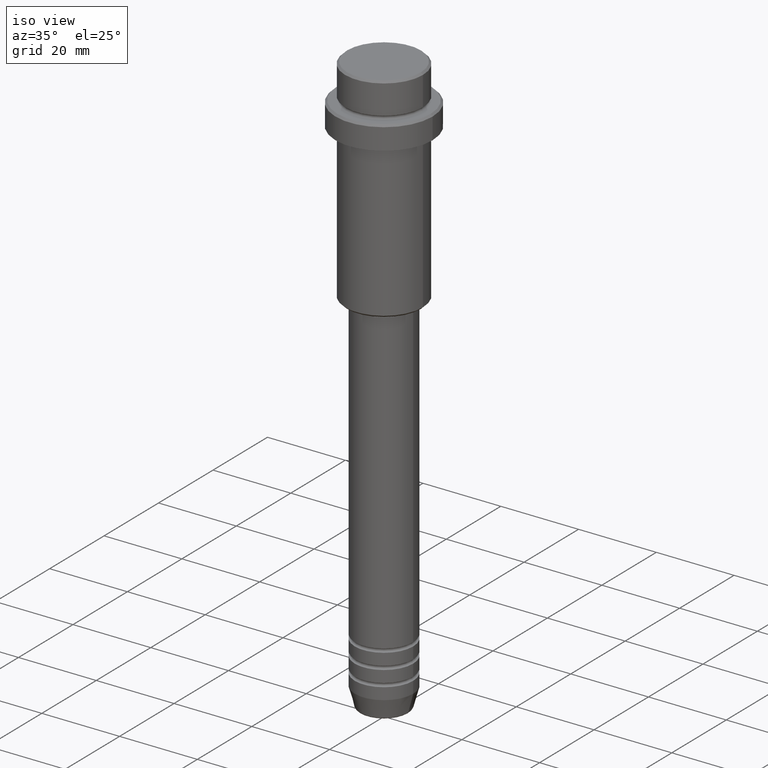
[diagram: clean part render]
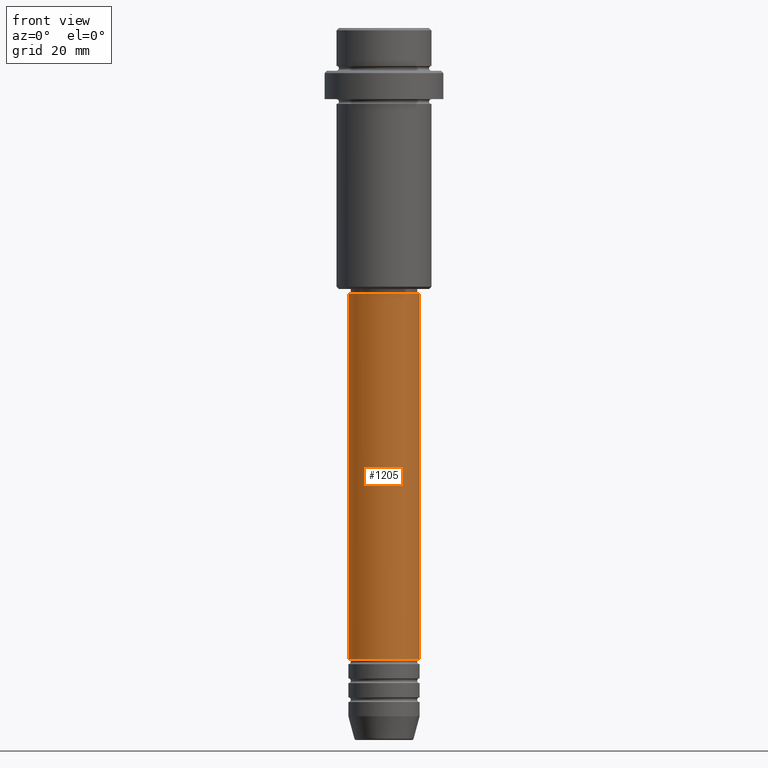
[diagram: tour spotlight — one face highlighted and labeled with its STEP entity id]
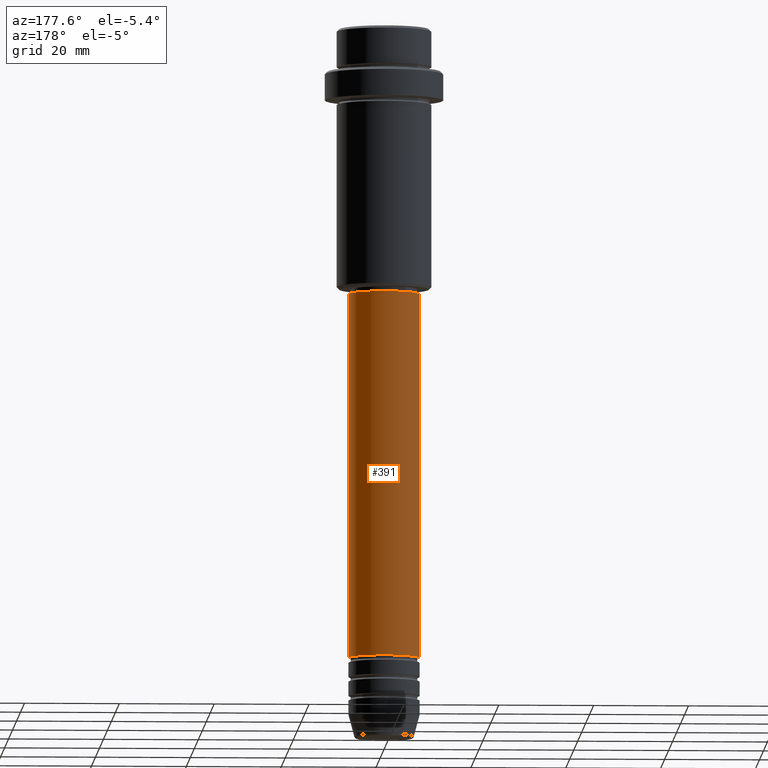
[diagram: tour spotlight — one face highlighted and labeled with its STEP entity id]
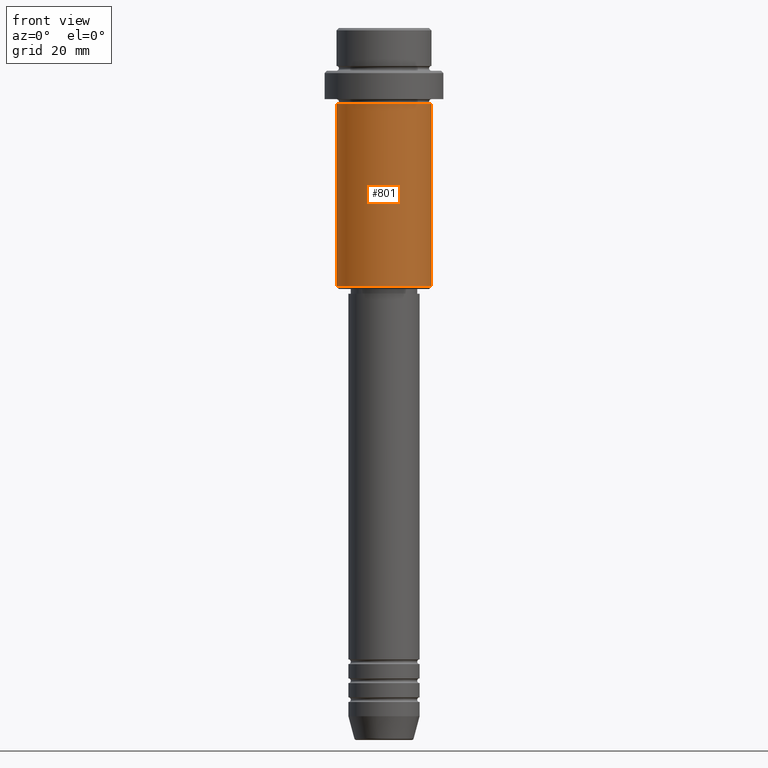
[diagram: tour spotlight — one face highlighted and labeled with its STEP entity id]
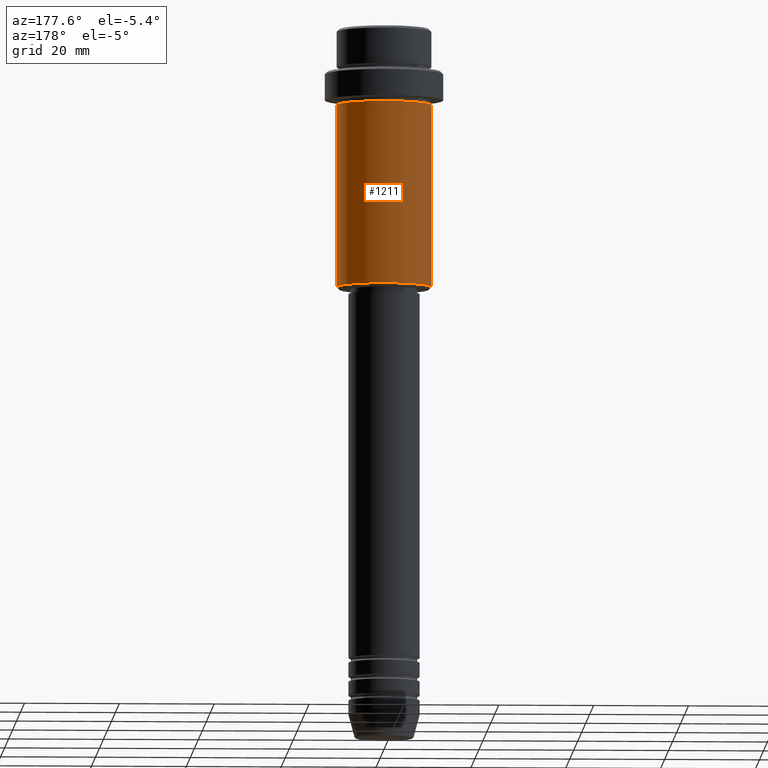
[diagram: tour spotlight — one face highlighted and labeled with its STEP entity id]
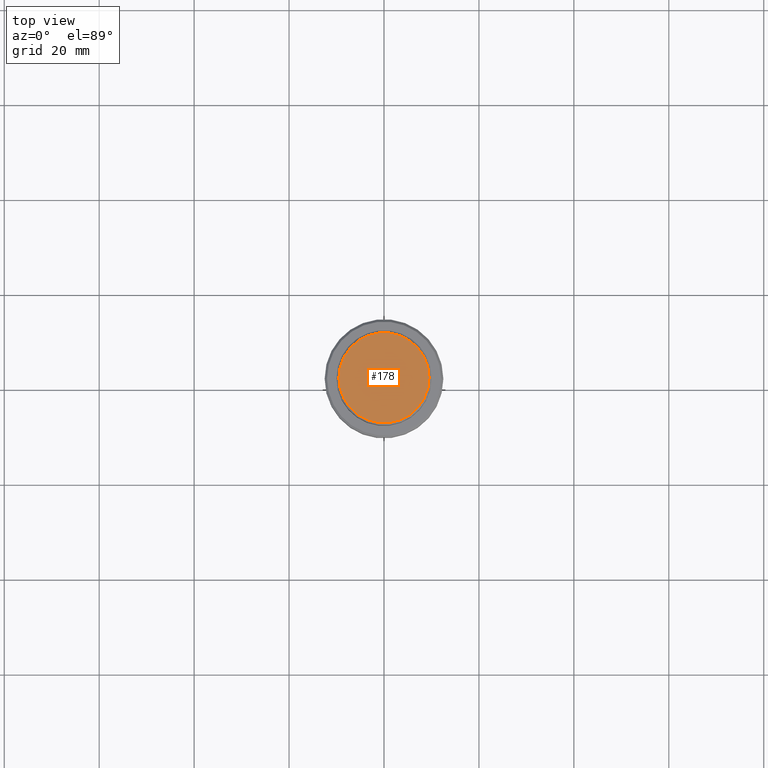
[diagram: tour spotlight — one face highlighted and labeled with its STEP entity id]
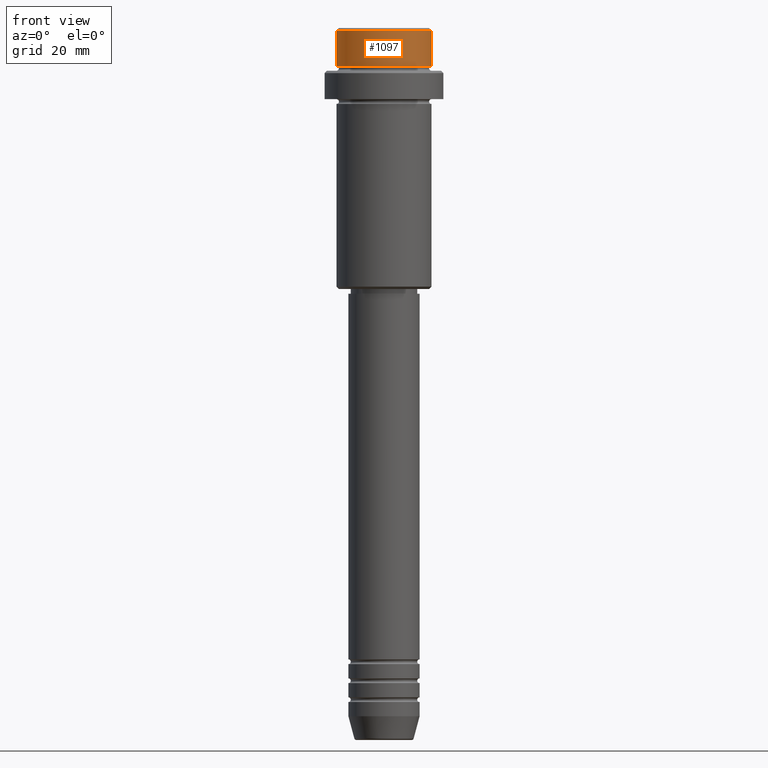
[diagram: tour spotlight — one face highlighted and labeled with its STEP entity id]
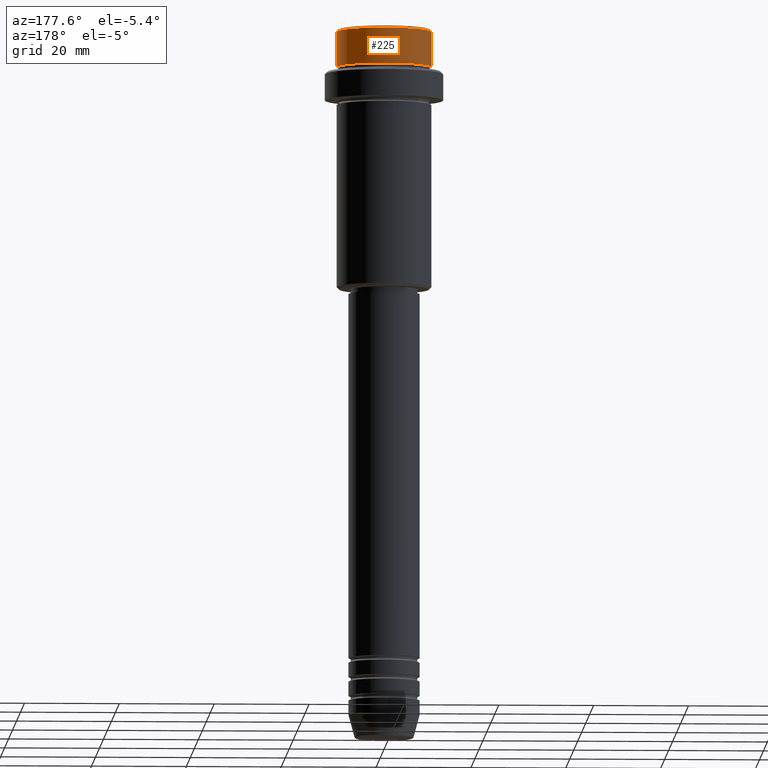
[diagram: tour spotlight — one face highlighted and labeled with its STEP entity id]
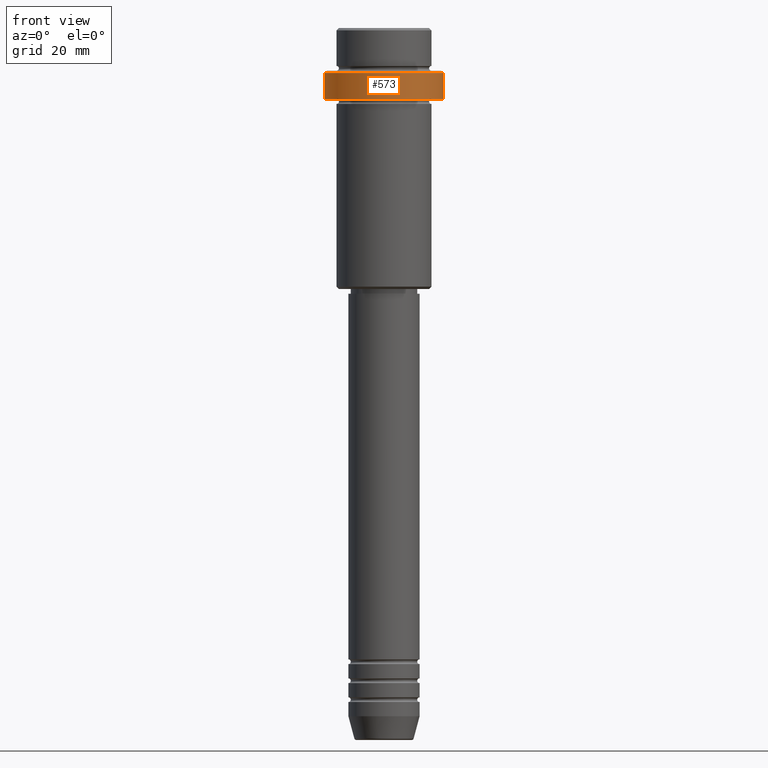
[diagram: tour spotlight — one face highlighted and labeled with its STEP entity id]
A machine part: a face-by-face anatomy tour. The part has 52 B-rep faces; the first image is the clean iso view, then the 8 largest visible faces are spotlighted one at a time (largest first), each with its STEP entity span.

Face 1 — front view, entity #1205. In plain terms, the highlighted cylindrical surface (edge-blend (fillet) strip) has radius 7.5 mm, axis along (-0, -0, 1).
Definition (entity closure, byte-faithful):
#8 = CYLINDRICAL_SURFACE ( 'NONE', #286, 7.500000000000000000 ) ;
#26 = CARTESIAN_POINT ( 'NONE',  ( -7.500000000000000000, 9.184850993605147944E-16, 0.000000000000000000 ) ) ;
#38 = VERTEX_POINT ( 'NONE', #171 ) ;
#110 = ORIENTED_EDGE ( 'NONE', *, *, #1220, .T. ) ;
#119 = VERTEX_POINT ( 'NONE', #409 ) ;
#123 = DIRECTION ( 'NONE',  ( -0.000000000000000000, -0.000000000000000000, 1.000000000000000000 ) ) ;
#171 = CARTESIAN_POINT ( 'NONE',  ( -7.500000000000000000, 9.184850993605147944E-16, -55.99999999999997158 ) ) ;
#200 = CIRCLE ( 'NONE', #999, 7.500000000000000000 ) ;
#240 = VECTOR ( 'NONE', #123, 1000.000000000000000 ) ;
#251 = CARTESIAN_POINT ( 'NONE',  ( 0.000000000000000000, 0.000000000000000000, -55.99999999999997158 ) ) ;
#256 = DIRECTION ( 'NONE',  ( 1.000000000000000000, 0.000000000000000000, 0.000000000000000000 ) ) ;
#268 = VECTOR ( 'NONE', #652, 1000.000000000000000 ) ;
#286 = AXIS2_PLACEMENT_3D ( 'NONE', #902, #793, #670 ) ;
#325 = EDGE_CURVE ( 'NONE', #751, #38, #1217, .T. ) ;
#409 = CARTESIAN_POINT ( 'NONE',  ( 7.500000000000000000, 0.000000000000000000, -132.9999999999998579 ) ) ;
#478 = CARTESIAN_POINT ( 'NONE',  ( 0.000000000000000000, 0.000000000000000000, -132.9999999999998579 ) ) ;
#519 = ORIENTED_EDGE ( 'NONE', *, *, #1277, .F. ) ;
#533 = AXIS2_PLACEMENT_3D ( 'NONE', #478, #921, #1356 ) ;
#629 = CIRCLE ( 'NONE', #533, 7.500000000000000000 ) ;
#652 = DIRECTION ( 'NONE',  ( -0.000000000000000000, -0.000000000000000000, 1.000000000000000000 ) ) ;
#670 = DIRECTION ( 'NONE',  ( 1.000000000000000000, 0.000000000000000000, 0.000000000000000000 ) ) ;
#682 = EDGE_LOOP ( 'NONE', ( #1349, #915, #110, #519 ) ) ;
#751 = VERTEX_POINT ( 'NONE', #1339 ) ;
#763 = FACE_OUTER_BOUND ( 'NONE', #682, .T. ) ;
#776 = LINE ( 'NONE', #1231, #268 ) ;
#793 = DIRECTION ( 'NONE',  ( -0.000000000000000000, -0.000000000000000000, 1.000000000000000000 ) ) ;
#799 = CARTESIAN_POINT ( 'NONE',  ( 7.500000000000000000, 0.000000000000000000, -55.99999999999997158 ) ) ;
#902 = CARTESIAN_POINT ( 'NONE',  ( 0.000000000000000000, 0.000000000000000000, 0.000000000000000000 ) ) ;
#915 = ORIENTED_EDGE ( 'NONE', *, *, #1398, .T. ) ;
#921 = DIRECTION ( 'NONE',  ( -0.000000000000000000, -0.000000000000000000, 1.000000000000000000 ) ) ;
#999 = AXIS2_PLACEMENT_3D ( 'NONE', #251, #1247, #256 ) ;
#1205 = ADVANCED_FACE ( 'NONE', ( #763 ), #8, .T. ) ;
#1217 = LINE ( 'NONE', #26, #240 ) ;
#1220 = EDGE_CURVE ( 'NONE', #119, #1242, #776, .T. ) ;
#1231 = CARTESIAN_POINT ( 'NONE',  ( 7.500000000000000000, 0.000000000000000000, 0.000000000000000000 ) ) ;
#1242 = VERTEX_POINT ( 'NONE', #799 ) ;
#1247 = DIRECTION ( 'NONE',  ( -0.000000000000000000, -0.000000000000000000, 1.000000000000000000 ) ) ;
#1277 = EDGE_CURVE ( 'NONE', #38, #1242, #200, .T. ) ;
#1339 = CARTESIAN_POINT ( 'NONE',  ( -7.500000000000000000, 9.184850993605147944E-16, -132.9999999999998579 ) ) ;
#1349 = ORIENTED_EDGE ( 'NONE', *, *, #325, .F. ) ;
#1356 = DIRECTION ( 'NONE',  ( 1.000000000000000000, 0.000000000000000000, 0.000000000000000000 ) ) ;
#1398 = EDGE_CURVE ( 'NONE', #751, #119, #629, .T. ) ;

Face 2 — auxiliary view, entity #391. In plain terms, the highlighted cylindrical surface (edge-blend (fillet) strip) has radius 7.5 mm, axis along (-0, -0, 1).
Definition (entity closure, byte-faithful):
#26 = CARTESIAN_POINT ( 'NONE',  ( -7.500000000000000000, 9.184850993605147944E-16, 0.000000000000000000 ) ) ;
#33 = AXIS2_PLACEMENT_3D ( 'NONE', #1037, #279, #1046 ) ;
#38 = VERTEX_POINT ( 'NONE', #171 ) ;
#53 = DIRECTION ( 'NONE',  ( 1.000000000000000000, 0.000000000000000000, 0.000000000000000000 ) ) ;
#119 = VERTEX_POINT ( 'NONE', #409 ) ;
#123 = DIRECTION ( 'NONE',  ( -0.000000000000000000, -0.000000000000000000, 1.000000000000000000 ) ) ;
#171 = CARTESIAN_POINT ( 'NONE',  ( -7.500000000000000000, 9.184850993605147944E-16, -55.99999999999997158 ) ) ;
#175 = AXIS2_PLACEMENT_3D ( 'NONE', #1271, #287, #53 ) ;
#177 = CIRCLE ( 'NONE', #975, 7.500000000000000000 ) ;
#240 = VECTOR ( 'NONE', #123, 1000.000000000000000 ) ;
#268 = VECTOR ( 'NONE', #652, 1000.000000000000000 ) ;
#279 = DIRECTION ( 'NONE',  ( -0.000000000000000000, -0.000000000000000000, 1.000000000000000000 ) ) ;
#287 = DIRECTION ( 'NONE',  ( -0.000000000000000000, -0.000000000000000000, 1.000000000000000000 ) ) ;
#319 = DIRECTION ( 'NONE',  ( -0.000000000000000000, -0.000000000000000000, 1.000000000000000000 ) ) ;
#325 = EDGE_CURVE ( 'NONE', #751, #38, #1217, .T. ) ;
#391 = ADVANCED_FACE ( 'NONE', ( #914 ), #611, .T. ) ;
#409 = CARTESIAN_POINT ( 'NONE',  ( 7.500000000000000000, 0.000000000000000000, -132.9999999999998579 ) ) ;
#447 = EDGE_CURVE ( 'NONE', #1242, #38, #1250, .T. ) ;
#611 = CYLINDRICAL_SURFACE ( 'NONE', #33, 7.500000000000000000 ) ;
#639 = DIRECTION ( 'NONE',  ( 1.000000000000000000, 0.000000000000000000, 0.000000000000000000 ) ) ;
#652 = DIRECTION ( 'NONE',  ( -0.000000000000000000, -0.000000000000000000, 1.000000000000000000 ) ) ;
#751 = VERTEX_POINT ( 'NONE', #1339 ) ;
#776 = LINE ( 'NONE', #1231, #268 ) ;
#799 = CARTESIAN_POINT ( 'NONE',  ( 7.500000000000000000, 0.000000000000000000, -55.99999999999997158 ) ) ;
#913 = ORIENTED_EDGE ( 'NONE', *, *, #1054, .T. ) ;
#914 = FACE_OUTER_BOUND ( 'NONE', #1235, .T. ) ;
#975 = AXIS2_PLACEMENT_3D ( 'NONE', #1380, #319, #639 ) ;
#1021 = ORIENTED_EDGE ( 'NONE', *, *, #325, .T. ) ;
#1037 = CARTESIAN_POINT ( 'NONE',  ( 0.000000000000000000, 0.000000000000000000, 0.000000000000000000 ) ) ;
#1046 = DIRECTION ( 'NONE',  ( 1.000000000000000000, 0.000000000000000000, 0.000000000000000000 ) ) ;
#1054 = EDGE_CURVE ( 'NONE', #119, #751, #177, .T. ) ;
#1209 = ORIENTED_EDGE ( 'NONE', *, *, #1220, .F. ) ;
#1216 = ORIENTED_EDGE ( 'NONE', *, *, #447, .F. ) ;
#1217 = LINE ( 'NONE', #26, #240 ) ;
#1220 = EDGE_CURVE ( 'NONE', #119, #1242, #776, .T. ) ;
#1231 = CARTESIAN_POINT ( 'NONE',  ( 7.500000000000000000, 0.000000000000000000, 0.000000000000000000 ) ) ;
#1235 = EDGE_LOOP ( 'NONE', ( #913, #1021, #1216, #1209 ) ) ;
#1242 = VERTEX_POINT ( 'NONE', #799 ) ;
#1250 = CIRCLE ( 'NONE', #175, 7.500000000000000000 ) ;
#1271 = CARTESIAN_POINT ( 'NONE',  ( 0.000000000000000000, 0.000000000000000000, -55.99999999999997158 ) ) ;
#1339 = CARTESIAN_POINT ( 'NONE',  ( -7.500000000000000000, 9.184850993605147944E-16, -132.9999999999998579 ) ) ;
#1380 = CARTESIAN_POINT ( 'NONE',  ( 0.000000000000000000, 0.000000000000000000, -132.9999999999998579 ) ) ;

Face 3 — front view, entity #801. In plain terms, the highlighted cylindrical surface (partial cylindrical patch) has radius 10 mm, axis along (-0, -0, 1).
Definition (entity closure, byte-faithful):
#27 = EDGE_CURVE ( 'NONE', #1068, #574, #933, .T. ) ;
#46 = LINE ( 'NONE', #919, #486 ) ;
#85 = EDGE_LOOP ( 'NONE', ( #797, #1330, #1099, #1246 ) ) ;
#103 = CIRCLE ( 'NONE', #1111, 10.00000000000000000 ) ;
#107 = VERTEX_POINT ( 'NONE', #390 ) ;
#166 = VERTEX_POINT ( 'NONE', #1079 ) ;
#172 = DIRECTION ( 'NONE',  ( -0.000000000000000000, -0.000000000000000000, 1.000000000000000000 ) ) ;
#184 = CARTESIAN_POINT ( 'NONE',  ( 0.000000000000000000, 0.000000000000000000, -54.49999999999997868 ) ) ;
#224 = DIRECTION ( 'NONE',  ( 1.000000000000000000, 0.000000000000000000, 0.000000000000000000 ) ) ;
#253 = DIRECTION ( 'NONE',  ( -0.000000000000000000, -0.000000000000000000, 1.000000000000000000 ) ) ;
#298 = CARTESIAN_POINT ( 'NONE',  ( -10.00000000000000000, 1.224646799147353256E-15, -54.49999999999997868 ) ) ;
#390 = CARTESIAN_POINT ( 'NONE',  ( 10.00000000000000000, 0.000000000000000000, -16.00000000000000000 ) ) ;
#486 = VECTOR ( 'NONE', #1139, 1000.000000000000000 ) ;
#548 = EDGE_CURVE ( 'NONE', #1068, #166, #103, .T. ) ;
#555 = EDGE_CURVE ( 'NONE', #166, #107, #46, .T. ) ;
#574 = VERTEX_POINT ( 'NONE', #978 ) ;
#580 = CIRCLE ( 'NONE', #790, 10.00000000000000000 ) ;
#590 = DIRECTION ( 'NONE',  ( -0.000000000000000000, -0.000000000000000000, 1.000000000000000000 ) ) ;
#725 = DIRECTION ( 'NONE',  ( -0.000000000000000000, -0.000000000000000000, 1.000000000000000000 ) ) ;
#771 = FACE_OUTER_BOUND ( 'NONE', #85, .T. ) ;
#777 = CARTESIAN_POINT ( 'NONE',  ( 0.000000000000000000, 0.000000000000000000, 0.000000000000000000 ) ) ;
#784 = VECTOR ( 'NONE', #725, 1000.000000000000000 ) ;
#790 = AXIS2_PLACEMENT_3D ( 'NONE', #1044, #172, #929 ) ;
#797 = ORIENTED_EDGE ( 'NONE', *, *, #27, .F. ) ;
#801 = ADVANCED_FACE ( 'NONE', ( #771 ), #1308, .T. ) ;
#919 = CARTESIAN_POINT ( 'NONE',  ( 10.00000000000000000, 0.000000000000000000, 0.000000000000000000 ) ) ;
#929 = DIRECTION ( 'NONE',  ( 1.000000000000000000, 0.000000000000000000, 0.000000000000000000 ) ) ;
#933 = LINE ( 'NONE', #1053, #784 ) ;
#978 = CARTESIAN_POINT ( 'NONE',  ( -10.00000000000000000, 1.224646799147353256E-15, -16.00000000000000000 ) ) ;
#1025 = DIRECTION ( 'NONE',  ( -1.000000000000000000, 0.000000000000000000, 0.000000000000000000 ) ) ;
#1044 = CARTESIAN_POINT ( 'NONE',  ( 0.000000000000000000, 0.000000000000000000, -16.00000000000000000 ) ) ;
#1053 = CARTESIAN_POINT ( 'NONE',  ( -10.00000000000000000, 1.224646799147353256E-15, 0.000000000000000000 ) ) ;
#1068 = VERTEX_POINT ( 'NONE', #298 ) ;
#1079 = CARTESIAN_POINT ( 'NONE',  ( 10.00000000000000000, 0.000000000000000000, -54.49999999999997868 ) ) ;
#1099 = ORIENTED_EDGE ( 'NONE', *, *, #555, .T. ) ;
#1111 = AXIS2_PLACEMENT_3D ( 'NONE', #184, #590, #1025 ) ;
#1139 = DIRECTION ( 'NONE',  ( -0.000000000000000000, -0.000000000000000000, 1.000000000000000000 ) ) ;
#1175 = AXIS2_PLACEMENT_3D ( 'NONE', #777, #253, #224 ) ;
#1246 = ORIENTED_EDGE ( 'NONE', *, *, #1307, .F. ) ;
#1307 = EDGE_CURVE ( 'NONE', #574, #107, #580, .T. ) ;
#1308 = CYLINDRICAL_SURFACE ( 'NONE', #1175, 10.00000000000000000 ) ;
#1330 = ORIENTED_EDGE ( 'NONE', *, *, #548, .T. ) ;

Face 4 — auxiliary view, entity #1211. In plain terms, the highlighted cylindrical surface (partial cylindrical patch) has radius 10 mm, axis along (-0, -0, 1).
Definition (entity closure, byte-faithful):
#27 = EDGE_CURVE ( 'NONE', #1068, #574, #933, .T. ) ;
#30 = DIRECTION ( 'NONE',  ( -1.000000000000000000, 0.000000000000000000, 0.000000000000000000 ) ) ;
#46 = LINE ( 'NONE', #919, #486 ) ;
#107 = VERTEX_POINT ( 'NONE', #390 ) ;
#108 = AXIS2_PLACEMENT_3D ( 'NONE', #340, #556, #1095 ) ;
#166 = VERTEX_POINT ( 'NONE', #1079 ) ;
#218 = CIRCLE ( 'NONE', #283, 10.00000000000000000 ) ;
#228 = ORIENTED_EDGE ( 'NONE', *, *, #27, .T. ) ;
#266 = AXIS2_PLACEMENT_3D ( 'NONE', #722, #1056, #954 ) ;
#274 = EDGE_CURVE ( 'NONE', #166, #1068, #218, .T. ) ;
#283 = AXIS2_PLACEMENT_3D ( 'NONE', #687, #1114, #30 ) ;
#298 = CARTESIAN_POINT ( 'NONE',  ( -10.00000000000000000, 1.224646799147353256E-15, -54.49999999999997868 ) ) ;
#323 = ORIENTED_EDGE ( 'NONE', *, *, #985, .F. ) ;
#340 = CARTESIAN_POINT ( 'NONE',  ( 0.000000000000000000, 0.000000000000000000, 0.000000000000000000 ) ) ;
#390 = CARTESIAN_POINT ( 'NONE',  ( 10.00000000000000000, 0.000000000000000000, -16.00000000000000000 ) ) ;
#469 = ORIENTED_EDGE ( 'NONE', *, *, #274, .T. ) ;
#472 = ORIENTED_EDGE ( 'NONE', *, *, #555, .F. ) ;
#486 = VECTOR ( 'NONE', #1139, 1000.000000000000000 ) ;
#528 = EDGE_LOOP ( 'NONE', ( #469, #228, #323, #472 ) ) ;
#555 = EDGE_CURVE ( 'NONE', #166, #107, #46, .T. ) ;
#556 = DIRECTION ( 'NONE',  ( -0.000000000000000000, -0.000000000000000000, 1.000000000000000000 ) ) ;
#574 = VERTEX_POINT ( 'NONE', #978 ) ;
#687 = CARTESIAN_POINT ( 'NONE',  ( 0.000000000000000000, 0.000000000000000000, -54.49999999999997868 ) ) ;
#722 = CARTESIAN_POINT ( 'NONE',  ( 0.000000000000000000, 0.000000000000000000, -16.00000000000000000 ) ) ;
#725 = DIRECTION ( 'NONE',  ( -0.000000000000000000, -0.000000000000000000, 1.000000000000000000 ) ) ;
#784 = VECTOR ( 'NONE', #725, 1000.000000000000000 ) ;
#919 = CARTESIAN_POINT ( 'NONE',  ( 10.00000000000000000, 0.000000000000000000, 0.000000000000000000 ) ) ;
#933 = LINE ( 'NONE', #1053, #784 ) ;
#954 = DIRECTION ( 'NONE',  ( 1.000000000000000000, 0.000000000000000000, 0.000000000000000000 ) ) ;
#978 = CARTESIAN_POINT ( 'NONE',  ( -10.00000000000000000, 1.224646799147353256E-15, -16.00000000000000000 ) ) ;
#985 = EDGE_CURVE ( 'NONE', #107, #574, #1043, .T. ) ;
#993 = FACE_OUTER_BOUND ( 'NONE', #528, .T. ) ;
#1043 = CIRCLE ( 'NONE', #266, 10.00000000000000000 ) ;
#1053 = CARTESIAN_POINT ( 'NONE',  ( -10.00000000000000000, 1.224646799147353256E-15, 0.000000000000000000 ) ) ;
#1056 = DIRECTION ( 'NONE',  ( -0.000000000000000000, -0.000000000000000000, 1.000000000000000000 ) ) ;
#1068 = VERTEX_POINT ( 'NONE', #298 ) ;
#1079 = CARTESIAN_POINT ( 'NONE',  ( 10.00000000000000000, 0.000000000000000000, -54.49999999999997868 ) ) ;
#1095 = DIRECTION ( 'NONE',  ( 1.000000000000000000, 0.000000000000000000, 0.000000000000000000 ) ) ;
#1114 = DIRECTION ( 'NONE',  ( -0.000000000000000000, -0.000000000000000000, 1.000000000000000000 ) ) ;
#1139 = DIRECTION ( 'NONE',  ( -0.000000000000000000, -0.000000000000000000, 1.000000000000000000 ) ) ;
#1211 = ADVANCED_FACE ( 'NONE', ( #993 ), #1321, .T. ) ;
#1321 = CYLINDRICAL_SURFACE ( 'NONE', #108, 10.00000000000000000 ) ;

Face 5 — top view, entity #178. In plain terms, the highlighted planar face has unit normal (0, -0, 1).
Definition (entity closure, byte-faithful):
#41 = ORIENTED_EDGE ( 'NONE', *, *, #798, .T. ) ;
#57 = CIRCLE ( 'NONE', #1272, 9.500000000000008882 ) ;
#91 = DIRECTION ( 'NONE',  ( 1.000000000000000000, 0.000000000000000000, 0.000000000000000000 ) ) ;
#178 = ADVANCED_FACE ( 'NONE', ( #1409 ), #1187, .T. ) ;
#248 = DIRECTION ( 'NONE',  ( 1.000000000000000000, 0.000000000000000000, 0.000000000000000000 ) ) ;
#264 = AXIS2_PLACEMENT_3D ( 'NONE', #1121, #335, #248 ) ;
#331 = VERTEX_POINT ( 'NONE', #459 ) ;
#335 = DIRECTION ( 'NONE',  ( -0.000000000000000000, -0.000000000000000000, 1.000000000000000000 ) ) ;
#445 = CARTESIAN_POINT ( 'NONE',  ( 9.500000000000008882, 1.194030629168669864E-15, 0.000000000000000000 ) ) ;
#459 = CARTESIAN_POINT ( 'NONE',  ( -9.500000000000008882, 0.000000000000000000, 0.000000000000000000 ) ) ;
#553 = EDGE_LOOP ( 'NONE', ( #41, #843 ) ) ;
#591 = EDGE_CURVE ( 'NONE', #1125, #331, #57, .T. ) ;
#623 = CARTESIAN_POINT ( 'NONE',  ( 0.000000000000000000, 0.000000000000000000, 0.000000000000000000 ) ) ;
#656 = CARTESIAN_POINT ( 'NONE',  ( 0.000000000000000000, 0.000000000000000000, 0.000000000000000000 ) ) ;
#745 = DIRECTION ( 'NONE',  ( -0.000000000000000000, -0.000000000000000000, 1.000000000000000000 ) ) ;
#768 = DIRECTION ( 'NONE',  ( 0.000000000000000000, -0.000000000000000000, 1.000000000000000000 ) ) ;
#798 = EDGE_CURVE ( 'NONE', #331, #1125, #882, .T. ) ;
#843 = ORIENTED_EDGE ( 'NONE', *, *, #591, .T. ) ;
#882 = CIRCLE ( 'NONE', #264, 9.500000000000008882 ) ;
#1121 = CARTESIAN_POINT ( 'NONE',  ( 0.000000000000000000, 0.000000000000000000, 0.000000000000000000 ) ) ;
#1125 = VERTEX_POINT ( 'NONE', #445 ) ;
#1178 = DIRECTION ( 'NONE',  ( 1.000000000000000000, 0.000000000000000000, 0.000000000000000000 ) ) ;
#1187 = PLANE ( 'NONE',  #1289 ) ;
#1272 = AXIS2_PLACEMENT_3D ( 'NONE', #656, #745, #1178 ) ;
#1289 = AXIS2_PLACEMENT_3D ( 'NONE', #623, #768, #91 ) ;
#1409 = FACE_OUTER_BOUND ( 'NONE', #553, .T. ) ;

Face 6 — front view, entity #1097. In plain terms, the highlighted cylindrical surface (partial cylindrical patch) has radius 10 mm, axis along (-0, -0, 1).
Definition (entity closure, byte-faithful):
#72 = CYLINDRICAL_SURFACE ( 'NONE', #418, 9.999999999999998224 ) ;
#82 = VECTOR ( 'NONE', #1329, 1000.000000000000000 ) ;
#158 = VECTOR ( 'NONE', #292, 1000.000000000000000 ) ;
#162 = DIRECTION ( 'NONE',  ( -0.000000000000000000, -0.000000000000000000, 1.000000000000000000 ) ) ;
#216 = FACE_OUTER_BOUND ( 'NONE', #1065, .T. ) ;
#233 = ORIENTED_EDGE ( 'NONE', *, *, #792, .T. ) ;
#292 = DIRECTION ( 'NONE',  ( -0.000000000000000000, -0.000000000000000000, 1.000000000000000000 ) ) ;
#297 = VERTEX_POINT ( 'NONE', #471 ) ;
#326 = CARTESIAN_POINT ( 'NONE',  ( 9.999999999999998224, 0.000000000000000000, -7.999999999999998224 ) ) ;
#363 = DIRECTION ( 'NONE',  ( 1.000000000000000000, 0.000000000000000000, 0.000000000000000000 ) ) ;
#395 = DIRECTION ( 'NONE',  ( -0.000000000000000000, -0.000000000000000000, 1.000000000000000000 ) ) ;
#418 = AXIS2_PLACEMENT_3D ( 'NONE', #501, #395, #1169 ) ;
#453 = CARTESIAN_POINT ( 'NONE',  ( 9.999999999999998224, 0.000000000000000000, 0.000000000000000000 ) ) ;
#471 = CARTESIAN_POINT ( 'NONE',  ( 9.999999999999998224, 0.000000000000000000, -0.4999999999999970024 ) ) ;
#501 = CARTESIAN_POINT ( 'NONE',  ( 0.000000000000000000, 0.000000000000000000, 0.000000000000000000 ) ) ;
#585 = ORIENTED_EDGE ( 'NONE', *, *, #1318, .T. ) ;
#661 = CARTESIAN_POINT ( 'NONE',  ( 0.000000000000000000, 0.000000000000000000, -0.4999999999999970024 ) ) ;
#699 = AXIS2_PLACEMENT_3D ( 'NONE', #661, #1214, #1001 ) ;
#730 = VERTEX_POINT ( 'NONE', #1002 ) ;
#769 = VERTEX_POINT ( 'NONE', #326 ) ;
#792 = EDGE_CURVE ( 'NONE', #769, #297, #1203, .T. ) ;
#807 = CARTESIAN_POINT ( 'NONE',  ( -9.999999999999998224, 1.224646799147353059E-15, -7.999999999999998224 ) ) ;
#837 = LINE ( 'NONE', #1276, #158 ) ;
#849 = VERTEX_POINT ( 'NONE', #807 ) ;
#909 = CIRCLE ( 'NONE', #699, 9.999999999999998224 ) ;
#1001 = DIRECTION ( 'NONE',  ( 1.000000000000000000, 0.000000000000000000, 0.000000000000000000 ) ) ;
#1002 = CARTESIAN_POINT ( 'NONE',  ( -9.999999999999998224, 1.224646799147353059E-15, -0.4999999999999970024 ) ) ;
#1065 = EDGE_LOOP ( 'NONE', ( #1126, #585, #233, #1347 ) ) ;
#1097 = ADVANCED_FACE ( 'NONE', ( #216 ), #72, .T. ) ;
#1100 = EDGE_CURVE ( 'NONE', #849, #730, #837, .T. ) ;
#1126 = ORIENTED_EDGE ( 'NONE', *, *, #1100, .F. ) ;
#1127 = CARTESIAN_POINT ( 'NONE',  ( 0.000000000000000000, 0.000000000000000000, -7.999999999999998224 ) ) ;
#1148 = EDGE_CURVE ( 'NONE', #297, #730, #909, .T. ) ;
#1156 = CIRCLE ( 'NONE', #1381, 9.999999999999998224 ) ;
#1169 = DIRECTION ( 'NONE',  ( 1.000000000000000000, 0.000000000000000000, 0.000000000000000000 ) ) ;
#1203 = LINE ( 'NONE', #453, #82 ) ;
#1214 = DIRECTION ( 'NONE',  ( 0.000000000000000000, 0.000000000000000000, -1.000000000000000000 ) ) ;
#1276 = CARTESIAN_POINT ( 'NONE',  ( -9.999999999999998224, 1.224646799147353059E-15, 0.000000000000000000 ) ) ;
#1318 = EDGE_CURVE ( 'NONE', #849, #769, #1156, .T. ) ;
#1329 = DIRECTION ( 'NONE',  ( -0.000000000000000000, -0.000000000000000000, 1.000000000000000000 ) ) ;
#1347 = ORIENTED_EDGE ( 'NONE', *, *, #1148, .T. ) ;
#1381 = AXIS2_PLACEMENT_3D ( 'NONE', #1127, #162, #363 ) ;

Face 7 — auxiliary view, entity #225. In plain terms, the highlighted cylindrical surface (partial cylindrical patch) has radius 10 mm, axis along (-0, -0, 1).
Definition (entity closure, byte-faithful):
#21 = ORIENTED_EDGE ( 'NONE', *, *, #1100, .T. ) ;
#82 = VECTOR ( 'NONE', #1329, 1000.000000000000000 ) ;
#84 = FACE_OUTER_BOUND ( 'NONE', #1391, .T. ) ;
#112 = CYLINDRICAL_SURFACE ( 'NONE', #263, 9.999999999999998224 ) ;
#158 = VECTOR ( 'NONE', #292, 1000.000000000000000 ) ;
#165 = ORIENTED_EDGE ( 'NONE', *, *, #792, .F. ) ;
#203 = EDGE_CURVE ( 'NONE', #730, #297, #903, .T. ) ;
#207 = DIRECTION ( 'NONE',  ( 1.000000000000000000, 0.000000000000000000, 0.000000000000000000 ) ) ;
#225 = ADVANCED_FACE ( 'NONE', ( #84 ), #112, .T. ) ;
#263 = AXIS2_PLACEMENT_3D ( 'NONE', #1179, #1395, #207 ) ;
#292 = DIRECTION ( 'NONE',  ( -0.000000000000000000, -0.000000000000000000, 1.000000000000000000 ) ) ;
#297 = VERTEX_POINT ( 'NONE', #471 ) ;
#301 = DIRECTION ( 'NONE',  ( 0.000000000000000000, 0.000000000000000000, -1.000000000000000000 ) ) ;
#326 = CARTESIAN_POINT ( 'NONE',  ( 9.999999999999998224, 0.000000000000000000, -7.999999999999998224 ) ) ;
#453 = CARTESIAN_POINT ( 'NONE',  ( 9.999999999999998224, 0.000000000000000000, 0.000000000000000000 ) ) ;
#471 = CARTESIAN_POINT ( 'NONE',  ( 9.999999999999998224, 0.000000000000000000, -0.4999999999999970024 ) ) ;
#511 = CIRCLE ( 'NONE', #1202, 9.999999999999998224 ) ;
#520 = ORIENTED_EDGE ( 'NONE', *, *, #1180, .T. ) ;
#564 = ORIENTED_EDGE ( 'NONE', *, *, #203, .T. ) ;
#666 = CARTESIAN_POINT ( 'NONE',  ( 0.000000000000000000, 0.000000000000000000, -7.999999999999998224 ) ) ;
#730 = VERTEX_POINT ( 'NONE', #1002 ) ;
#769 = VERTEX_POINT ( 'NONE', #326 ) ;
#792 = EDGE_CURVE ( 'NONE', #769, #297, #1203, .T. ) ;
#807 = CARTESIAN_POINT ( 'NONE',  ( -9.999999999999998224, 1.224646799147353059E-15, -7.999999999999998224 ) ) ;
#837 = LINE ( 'NONE', #1276, #158 ) ;
#849 = VERTEX_POINT ( 'NONE', #807 ) ;
#854 = CARTESIAN_POINT ( 'NONE',  ( 0.000000000000000000, 0.000000000000000000, -0.4999999999999970024 ) ) ;
#881 = DIRECTION ( 'NONE',  ( -0.000000000000000000, -0.000000000000000000, 1.000000000000000000 ) ) ;
#903 = CIRCLE ( 'NONE', #926, 9.999999999999998224 ) ;
#926 = AXIS2_PLACEMENT_3D ( 'NONE', #854, #301, #1071 ) ;
#1002 = CARTESIAN_POINT ( 'NONE',  ( -9.999999999999998224, 1.224646799147353059E-15, -0.4999999999999970024 ) ) ;
#1071 = DIRECTION ( 'NONE',  ( 1.000000000000000000, 0.000000000000000000, 0.000000000000000000 ) ) ;
#1100 = EDGE_CURVE ( 'NONE', #849, #730, #837, .T. ) ;
#1179 = CARTESIAN_POINT ( 'NONE',  ( 0.000000000000000000, 0.000000000000000000, 0.000000000000000000 ) ) ;
#1180 = EDGE_CURVE ( 'NONE', #769, #849, #511, .T. ) ;
#1202 = AXIS2_PLACEMENT_3D ( 'NONE', #666, #881, #1315 ) ;
#1203 = LINE ( 'NONE', #453, #82 ) ;
#1276 = CARTESIAN_POINT ( 'NONE',  ( -9.999999999999998224, 1.224646799147353059E-15, 0.000000000000000000 ) ) ;
#1315 = DIRECTION ( 'NONE',  ( 1.000000000000000000, 0.000000000000000000, 0.000000000000000000 ) ) ;
#1329 = DIRECTION ( 'NONE',  ( -0.000000000000000000, -0.000000000000000000, 1.000000000000000000 ) ) ;
#1391 = EDGE_LOOP ( 'NONE', ( #520, #21, #564, #165 ) ) ;
#1395 = DIRECTION ( 'NONE',  ( -0.000000000000000000, -0.000000000000000000, 1.000000000000000000 ) ) ;

Face 8 — front view, entity #573. In plain terms, the highlighted cylindrical surface (partial cylindrical patch) has radius 12.5 mm, axis along (-0, -0, 1).
Definition (entity closure, byte-faithful):
#36 = DIRECTION ( 'NONE',  ( -0.000000000000000000, -0.000000000000000000, 1.000000000000000000 ) ) ;
#39 = DIRECTION ( 'NONE',  ( 0.000000000000000000, 0.000000000000000000, -1.000000000000000000 ) ) ;
#109 = CARTESIAN_POINT ( 'NONE',  ( -12.50000000000000000, 1.530808498934191521E-15, -9.499999999999952038 ) ) ;
#136 = CARTESIAN_POINT ( 'NONE',  ( 12.50000000000000000, 0.000000000000000000, -15.00000000000000178 ) ) ;
#144 = CARTESIAN_POINT ( 'NONE',  ( -12.50000000000000000, 1.530808498934191521E-15, 0.000000000000000000 ) ) ;
#167 = VERTEX_POINT ( 'NONE', #746 ) ;
#173 = CIRCLE ( 'NONE', #671, 12.50000000000000000 ) ;
#189 = CARTESIAN_POINT ( 'NONE',  ( 0.000000000000000000, 0.000000000000000000, 0.000000000000000000 ) ) ;
#245 = AXIS2_PLACEMENT_3D ( 'NONE', #475, #36, #1359 ) ;
#272 = DIRECTION ( 'NONE',  ( -0.000000000000000000, -0.000000000000000000, 1.000000000000000000 ) ) ;
#277 = EDGE_CURVE ( 'NONE', #167, #1230, #173, .T. ) ;
#299 = CYLINDRICAL_SURFACE ( 'NONE', #741, 12.50000000000000000 ) ;
#332 = CIRCLE ( 'NONE', #245, 12.50000000000000000 ) ;
#342 = LINE ( 'NONE', #144, #1311 ) ;
#361 = CARTESIAN_POINT ( 'NONE',  ( 0.000000000000000000, 0.000000000000000000, -9.499999999999952038 ) ) ;
#377 = LINE ( 'NONE', #1351, #442 ) ;
#379 = EDGE_CURVE ( 'NONE', #644, #1230, #342, .T. ) ;
#442 = VECTOR ( 'NONE', #272, 1000.000000000000000 ) ;
#475 = CARTESIAN_POINT ( 'NONE',  ( 0.000000000000000000, 0.000000000000000000, -15.00000000000000178 ) ) ;
#512 = FACE_OUTER_BOUND ( 'NONE', #1370, .T. ) ;
#573 = ADVANCED_FACE ( 'NONE', ( #512 ), #299, .T. ) ;
#640 = DIRECTION ( 'NONE',  ( -0.000000000000000000, -0.000000000000000000, 1.000000000000000000 ) ) ;
#644 = VERTEX_POINT ( 'NONE', #1394 ) ;
#671 = AXIS2_PLACEMENT_3D ( 'NONE', #361, #39, #1210 ) ;
#688 = ORIENTED_EDGE ( 'NONE', *, *, #277, .T. ) ;
#720 = ORIENTED_EDGE ( 'NONE', *, *, #899, .T. ) ;
#729 = VERTEX_POINT ( 'NONE', #136 ) ;
#741 = AXIS2_PLACEMENT_3D ( 'NONE', #189, #640, #1416 ) ;
#746 = CARTESIAN_POINT ( 'NONE',  ( 12.50000000000000000, 0.000000000000000000, -9.499999999999952038 ) ) ;
#888 = DIRECTION ( 'NONE',  ( -0.000000000000000000, -0.000000000000000000, 1.000000000000000000 ) ) ;
#899 = EDGE_CURVE ( 'NONE', #644, #729, #332, .T. ) ;
#932 = EDGE_CURVE ( 'NONE', #729, #167, #377, .T. ) ;
#963 = ORIENTED_EDGE ( 'NONE', *, *, #379, .F. ) ;
#1042 = ORIENTED_EDGE ( 'NONE', *, *, #932, .T. ) ;
#1210 = DIRECTION ( 'NONE',  ( 1.000000000000000000, 0.000000000000000000, 0.000000000000000000 ) ) ;
#1230 = VERTEX_POINT ( 'NONE', #109 ) ;
#1311 = VECTOR ( 'NONE', #888, 1000.000000000000000 ) ;
#1351 = CARTESIAN_POINT ( 'NONE',  ( 12.50000000000000000, 0.000000000000000000, 0.000000000000000000 ) ) ;
#1359 = DIRECTION ( 'NONE',  ( 1.000000000000000000, 0.000000000000000000, 0.000000000000000000 ) ) ;
#1370 = EDGE_LOOP ( 'NONE', ( #963, #720, #1042, #688 ) ) ;
#1394 = CARTESIAN_POINT ( 'NONE',  ( -12.50000000000000000, 1.530808498934191521E-15, -15.00000000000000178 ) ) ;
#1416 = DIRECTION ( 'NONE',  ( 1.000000000000000000, 0.000000000000000000, 0.000000000000000000 ) ) ;